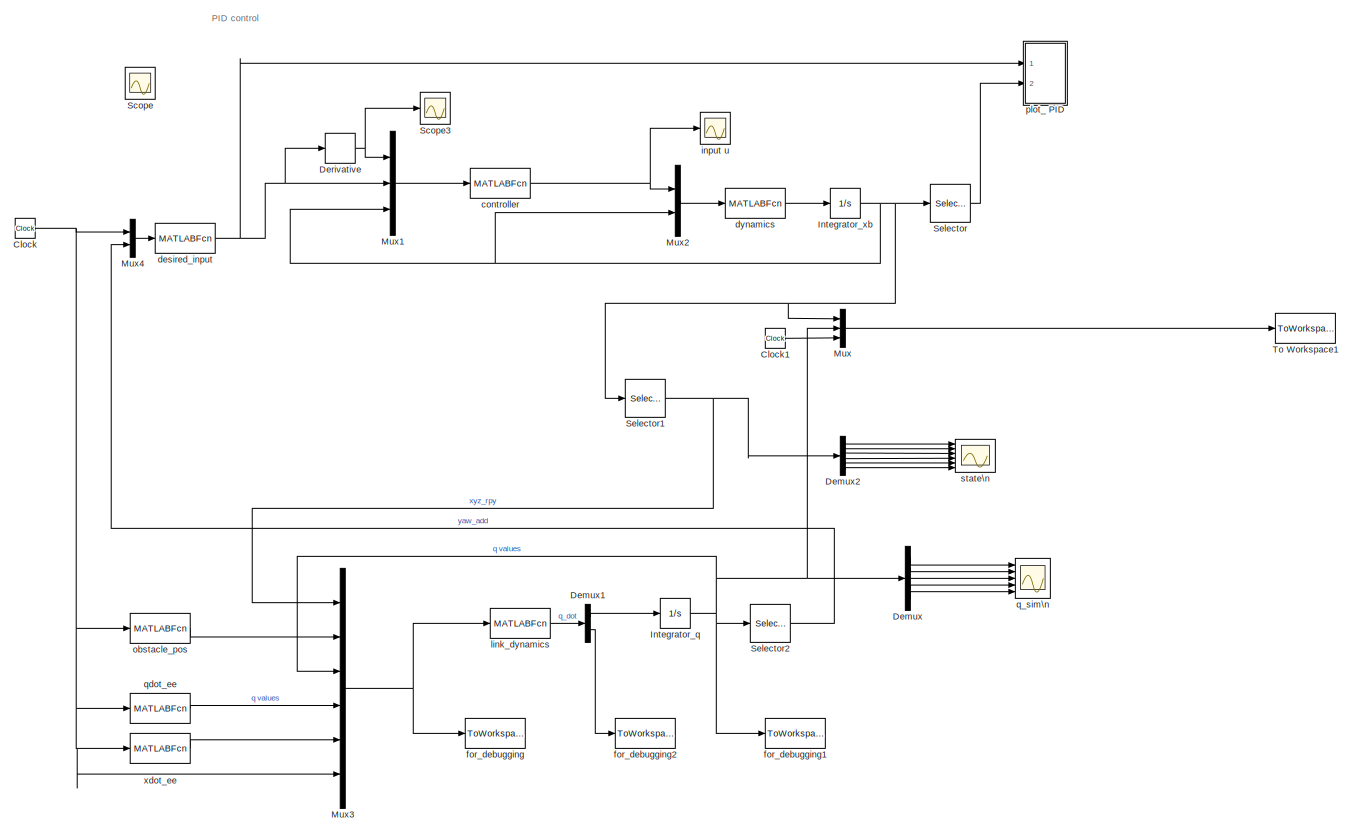
[diagram: root canvas - part 1/1, most of the canvas]
MODEL simulink_pd
KIND model
BLOCK [Clock] Clock
  SID = 1
BLOCK [Clock] Clock1
  SID = 59
BLOCK [Demux] Demux
  DisplayOption = bar
  Outputs = 5
  Ports = [1, 5]
  SID = 84
BLOCK [Demux] Demux1
  DisplayOption = bar
  Outputs = [5 6]
  Ports = [1, 2]
  SID = 89
BLOCK [Demux] Demux2
  DisplayOption = bar
  Outputs = 6
  Ports = [1, 6]
  SID = 54
BLOCK [Derivative] Derivative
  SID = 4
BLOCK [Integrator] Integrator_q
  InitialCondition = q0+q_start
  LimitOutput = on
  Ports = [1, 1]
  SID = 63
BLOCK [Integrator] Integrator_xb
  InitialCondition = [xd(1,2) 0 zd(1,2)  0 0 yaw(1) 0 0 0 0 0 0]
  Ports = [1, 1]
  SID = 5
BLOCK [Mux] Mux
  DisplayOption = bar
  Inputs = 3
  Ports = [3, 1]
  SID = 58
BLOCK [Mux] Mux1
  DisplayOption = bar
  Inputs = 3
  Ports = [3, 1]
  SID = 7
BLOCK [Mux] Mux2
  DisplayOption = bar
  Inputs = 2
  Ports = [2, 1]
  SID = 8
BLOCK [Mux] Mux3
  DisplayOption = bar
  Inputs = 6
  Ports = [6, 1]
  SID = 62
BLOCK [Mux] Mux4
  DisplayOption = bar
  Inputs = 2
  Ports = [2, 1]
  SID = 66
BLOCK [Scope] Scope
  IOType = viewer
  NumInputPorts = 1
  Ports = []
  SID = 68
  ScopeSpecificationString = Simulink.scopes.TimeScopeBlockCfg('CurrentConfiguration', extmgr.ConfigurationSet(extmgr.Configuration('Core','General UI',true),extmgr.Configuration('Core','Source UI',true),extmgr.Configuration('Sources','WiredSimulink',true,'DataLoggingVariableName','ScopeData1'),extmgr.Configuration('Visuals','Time Domain',true,'SerializedDisplays',{struct('MinYLimReal','-2.6745','MaxYLimReal','2.26092','YLabe...<+1456ch>
BLOCK [Scope] Scope3
  NumInputPorts = 1
  Ports = [1]
  SID = 12
  ScopeSpecificationString = Simulink.scopes.TimeScopeBlockCfg('CurrentConfiguration', extmgr.ConfigurationSet(extmgr.Configuration('Core','General UI',true),extmgr.Configuration('Core','Source UI',true),extmgr.Configuration('Sources','WiredSimulink',true,'DataLoggingVariableName','ScopeData3','DataLoggingSaveFormat','StructureWithTime','DataLoggingLimitDataPoints',true,'DataLoggingDecimation','1','DataLoggingDecimateData',tr...<+1730ch>
BLOCK [Selector] Selector
  IndexOptions = Index vector (dialog)
  Indices = [1 2 3 6]
  InputPortWidth = 12
  OutputSizes = 1
  Ports = [1, 1]
  SID = 13
BLOCK [Selector] Selector1
  IndexOptions = Index vector (dialog)
  Indices = [1 2 3 4 5 6]
  InputPortWidth = 12
  OutputSizes = 1
  Ports = [1, 1]
  SID = 55
BLOCK [Selector] Selector2
  IndexOptions = Index vector (dialog)
  Indices = [1]
  InputPortWidth = 5
  OutputSizes = 1
  Ports = [1, 1]
  SID = 67
BLOCK [ToWorkspace] To Workspace1
  MaxDataPoints = inf
  Ports = [1]
  SID = 15
  SampleTime = -1
  VariableName = output1
BLOCK [MATLABFcn] controller
  MATLABFcn = sim_controller_pd
  OutputDimensions = 4
  Ports = [1, 1]
  SID = 16
BLOCK [MATLABFcn] desired_input
  MATLABFcn = sim_xyzyaw_d
  OutputDimensions = 4
  Ports = [1, 1]
  SID = 26
BLOCK [MATLABFcn] dynamics
  MATLABFcn = sim_dynamics_pd
  OutputDimensions = 12
  Ports = [1, 1]
  SID = 17
BLOCK [ToWorkspace] for_debugging
  FixptAsFi = on
  MaxDataPoints = inf
  Ports = [1]
  SID = 69
  SampleTime = -1
  Save2DSignal = 3-D array (concatenate along third dimension)
  SaveFormat = Timeseries
  VariableName = cur_input
BLOCK [ToWorkspace] for_debugging1
  FixptAsFi = on
  MaxDataPoints = inf
  Ports = [1]
  SID = 71
  SampleTime = -1
  Save2DSignal = 3-D array (concatenate along third dimension)
  SaveFormat = Timeseries
  VariableName = next_q
BLOCK [ToWorkspace] for_debugging2
  FixptAsFi = on
  MaxDataPoints = inf
  Ports = [1]
  SID = 90
  SampleTime = -1
  Save2DSignal = 3-D array (concatenate along third dimension)
  SaveFormat = Timeseries
  VariableName = x0_x0dot
BLOCK [Scope] input u
  NumInputPorts = 1
  Ports = [1]
  SID = 11
  ScopeSpecificationString = Simulink.scopes.TimeScopeBlockCfg('CurrentConfiguration', extmgr.ConfigurationSet(extmgr.Configuration('Core','General UI',true),extmgr.Configuration('Core','Source UI',true),extmgr.Configuration('Sources','WiredSimulink',true,'DataLoggingVariableName','ScopeData2','DataLoggingSaveFormat','StructureWithTime','DataLoggingLimitDataPoints',true,'DataLoggingDecimation','1','DataLoggingDecimateData',tr...<+1822ch>
BLOCK [MATLABFcn] link_dynamics
  MATLABFcn = link_dynamics
  OutputDimensions = dof+6
  Ports = [1, 1]
  SID = 61
BLOCK [MATLABFcn] obstacle_pos
  MATLABFcn = sim_obstacle
  OutputDimensions = 3
  Ports = [1, 1]
  SID = 60
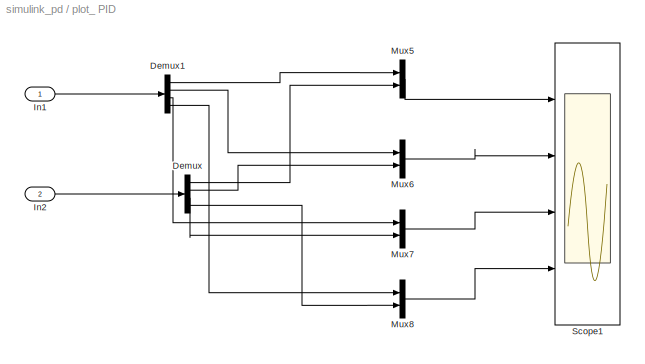
BLOCK [SubSystem] plot_ PID
  Ports = [2]
  RequestExecContextInheritance = off
  SID = 79
  Variant = off
BLOCK [Demux] plot_ PID/Demux
  DisplayOption = bar
  Ports = [1, 4]
  SID = 2
BLOCK [Demux] plot_ PID/Demux1
  DisplayOption = bar
  Ports = [1, 4]
  SID = 3
BLOCK [Inport] plot_ PID/In1
  IconDisplay = Port number
  SID = 80
BLOCK [Inport] plot_ PID/In2
  IconDisplay = Port number
  Port = 2
  SID = 81
BLOCK [Mux] plot_ PID/Mux5
  DisplayOption = bar
  Inputs = 2
  Ports = [2, 1]
  SID = 74
BLOCK [Mux] plot_ PID/Mux6
  DisplayOption = bar
  Inputs = 2
  Ports = [2, 1]
  SID = 75
BLOCK [Mux] plot_ PID/Mux7
  DisplayOption = bar
  Inputs = 2
  Ports = [2, 1]
  SID = 76
BLOCK [Mux] plot_ PID/Mux8
  DisplayOption = bar
  Inputs = 2
  Ports = [2, 1]
  SID = 77
BLOCK [Scope] plot_ PID/Scope1
  NumInputPorts = 4
  Ports = [4]
  SID = 78
  ScopeSpecificationString = Simulink.scopes.TimeScopeBlockCfg('CurrentConfiguration', extmgr.ConfigurationSet(extmgr.Configuration('Core','General UI',true),extmgr.Configuration('Core','Source UI',true),extmgr.Configuration('Sources','WiredSimulink',true,'DataLoggingVariableName','ScopeData1'),extmgr.Configuration('Visuals','Time Domain',true,'SerializedDisplays',{struct('MinYLimReal','-37.72145','MaxYLimReal','39.49309','YL...<+3513ch>
BLOCK [Scope] q_sim\n
  NumInputPorts = 5
  Ports = [5]
  SID = 82
  ScopeSpecificationString = Simulink.scopes.TimeScopeBlockCfg('CurrentConfiguration', extmgr.ConfigurationSet(extmgr.Configuration('Core','General UI',true),extmgr.Configuration('Core','Source UI',true),extmgr.Configuration('Sources','WiredSimulink',true,'DataLoggingVariableName','ScopeData2'),extmgr.Configuration('Visuals','Time Domain',true,'SerializedDisplays',{struct('MinYLimReal','-0.08219','MaxYLimReal','0.73132','YLab...<+6126ch>
BLOCK [MATLABFcn] qdot_ee
  MATLABFcn = sim_qdot_ee
  OutputDimensions = 5
  Ports = [1, 1]
  SID = 64
BLOCK [Scope] state\n
  NumInputPorts = 6
  Ports = [6]
  SID = 53
  ScopeSpecificationString = Simulink.scopes.TimeScopeBlockCfg('CurrentConfiguration', extmgr.ConfigurationSet(extmgr.Configuration('Core','General UI',true),extmgr.Configuration('Core','Source UI',true),extmgr.Configuration('Sources','WiredSimulink',true,'DataLoggingVariableName','ScopeData1'),extmgr.Configuration('Visuals','Time Domain',true,'SerializedDisplays',{struct('MinYLimReal','-31.29849','MaxYLimReal','31.25539','YL...<+6135ch>
BLOCK [MATLABFcn] xdot_ee
  MATLABFcn = sim_xdot_ee
  OutputDimensions = 3
  Ports = [1, 1]
  SID = 65
ANNOTATION (root): PID control\n
LINE Clock1:1 -> Mux:3
NET Clock:1 -> Mux3:6, Mux4:1, obstacle_pos:1, qdot_ee:1, xdot_ee:1
LINE Demux1:1 -> Integrator_q:1
LINE Demux1:2 -> for_debugging2:1
LINE Demux2:1 -> state\n:1
LINE Demux2:2 -> state\n:2
LINE Demux2:3 -> state\n:3
LINE Demux2:4 -> state\n:4
LINE Demux2:5 -> state\n:5
LINE Demux2:6 -> state\n:6
LINE Demux:1 -> q_sim\n:1
LINE Demux:2 -> q_sim\n:2
LINE Demux:3 -> q_sim\n:3
LINE Demux:4 -> q_sim\n:4
LINE Demux:5 -> q_sim\n:5
NET Derivative:1 -> Mux1:1, Scope3:1
NET Integrator_q:1 -> Demux:1, Mux3:3, Mux:2, Selector2:1, for_debugging1:1
NET Integrator_xb:1 -> Mux1:3, Mux2:2, Mux:1, Selector1:1, Selector:1
LINE Mux1:1 -> controller:1
LINE Mux2:1 -> dynamics:1
NET Mux3:1 -> for_debugging:1, link_dynamics:1
LINE Mux4:1 -> desired_input:1
LINE Mux:1 -> To Workspace1:1
NET Selector1:1 -> Demux2:1, Mux3:1
LINE Selector2:1 -> Mux4:2
LINE Selector:1 -> plot_ PID:2
NET controller:1 -> Mux2:1, input u:1
NET desired_input:1 -> Derivative:1, Mux1:2, plot_ PID:1
LINE dynamics:1 -> Integrator_xb:1
LINE link_dynamics:1 -> Demux1:1
LINE obstacle_pos:1 -> Mux3:2
LINE plot_ PID/Demux1:1 -> plot_ PID/Mux5:1
LINE plot_ PID/Demux1:2 -> plot_ PID/Mux6:1
LINE plot_ PID/Demux1:3 -> plot_ PID/Mux7:1
LINE plot_ PID/Demux1:4 -> plot_ PID/Mux8:1
LINE plot_ PID/Demux:1 -> plot_ PID/Mux5:2
LINE plot_ PID/Demux:2 -> plot_ PID/Mux6:2
LINE plot_ PID/Demux:3 -> plot_ PID/Mux7:2
LINE plot_ PID/Demux:4 -> plot_ PID/Mux8:2
LINE plot_ PID/In1:1 -> plot_ PID/Demux1:1
LINE plot_ PID/In2:1 -> plot_ PID/Demux:1
LINE plot_ PID/Mux5:1 -> plot_ PID/Scope1:1
LINE plot_ PID/Mux6:1 -> plot_ PID/Scope1:2
LINE plot_ PID/Mux7:1 -> plot_ PID/Scope1:3
LINE plot_ PID/Mux8:1 -> plot_ PID/Scope1:4
LINE qdot_ee:1 -> Mux3:4
LINE xdot_ee:1 -> Mux3:5
note: NET lines group one-source signal fan-out (src -> all destinations, sorted); 1:1 wires keep LINE
